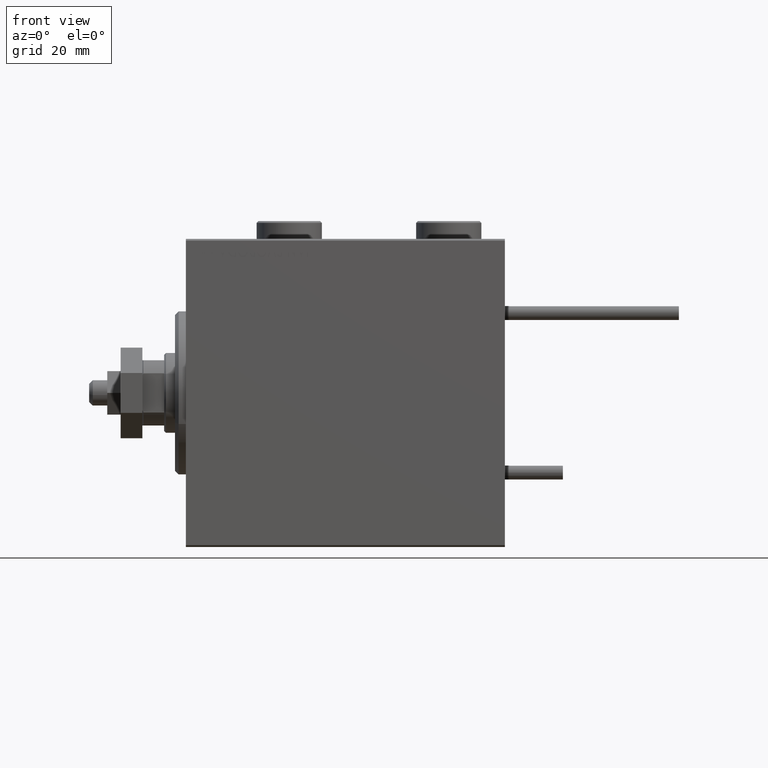
[diagram: clean part render]
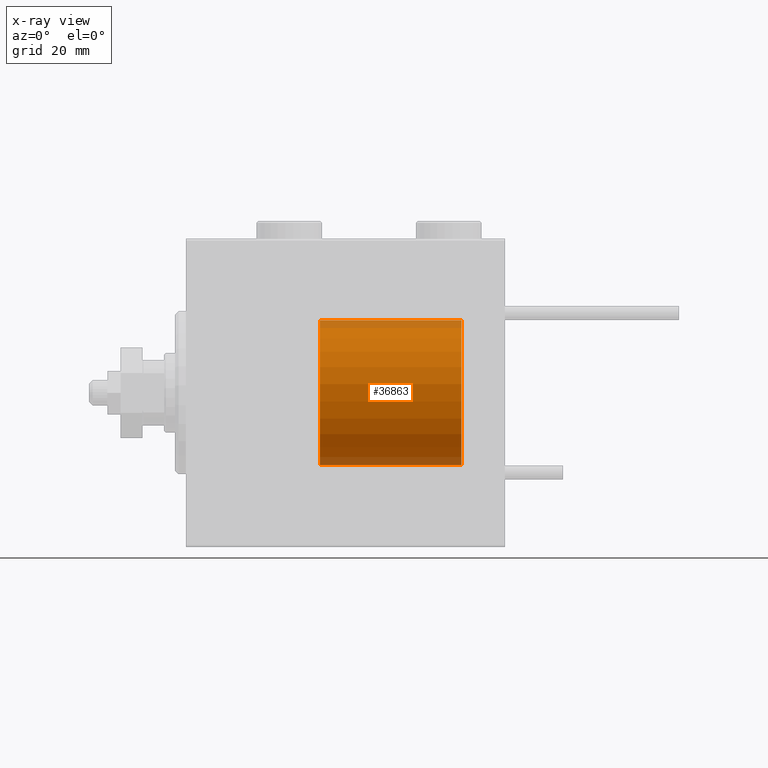
[diagram: x-ray — body ghosted, one internal face saturated and labeled with its STEP entity id]
A machine part, front view, then the same camera in x-ray: the body is ghosted and one INTERNAL B-rep face — a face not visible from any outside direction — is saturated and labeled: STEP entity #36863.
In plain terms, the highlighted cylindrical surface (partial cylindrical patch) has radius 20 mm, axis along (1, -0, -0).
Its self-contained STEP definition (entity closure, byte-faithful):
#14 = VERTEX_POINT ( 'NONE', #20806 ) ;
#439 = ORIENTED_EDGE ( 'NONE', *, *, #13097, .T. ) ;
#2779 = EDGE_CURVE ( 'NONE', #11774, #14, #8825, .T. ) ;
#4287 = VERTEX_POINT ( 'NONE', #35280 ) ;
#5956 = CIRCLE ( 'NONE', #35886, 20.00000000000000000 ) ;
#8825 = LINE ( 'NONE', #24671, #37941 ) ;
#9448 = DIRECTION ( 'NONE',  ( -1.000000000000000000, 0.000000000000000000, 0.000000000000000000 ) ) ;
#11774 = VERTEX_POINT ( 'NONE', #20909 ) ;
#12061 = CARTESIAN_POINT ( 'NONE',  ( 0.000000000000000000, 0.000000000000000000, 39.00000000000000000 ) ) ;
#13097 = EDGE_CURVE ( 'NONE', #42882, #14, #26489, .T. ) ;
#18336 = ORIENTED_EDGE ( 'NONE', *, *, #19271, .F. ) ;
#18864 = DIRECTION ( 'NONE',  ( -0.000000000000000000, -0.000000000000000000, -1.000000000000000000 ) ) ;
#19271 = EDGE_CURVE ( 'NONE', #4287, #11774, #5956, .T. ) ;
#20806 = CARTESIAN_POINT ( 'NONE',  ( 20.00000000000000000, 2.449293598294706513E-15, 0.000000000000000000 ) ) ;
#20909 = CARTESIAN_POINT ( 'NONE',  ( 20.00000000000000000, 2.449293598294706513E-15, 39.00000000000000000 ) ) ;
#20980 = VECTOR ( 'NONE', #18864, 1000.000000000000000 ) ;
#21001 = EDGE_CURVE ( 'NONE', #4287, #42882, #47285, .T. ) ;
#22179 = ORIENTED_EDGE ( 'NONE', *, *, #2779, .F. ) ;
#24671 = CARTESIAN_POINT ( 'NONE',  ( 20.00000000000000000, 2.449293598294706513E-15, 39.00000000000000000 ) ) ;
#26489 = CIRCLE ( 'NONE', #49857, 20.00000000000000000 ) ;
#26982 = DIRECTION ( 'NONE',  ( 0.000000000000000000, 0.000000000000000000, 1.000000000000000000 ) ) ;
#27232 = DIRECTION ( 'NONE',  ( 1.000000000000000000, 0.000000000000000000, 0.000000000000000000 ) ) ;
#27755 = CARTESIAN_POINT ( 'NONE',  ( -20.00000000000000000, 0.000000000000000000, 0.000000000000000000 ) ) ;
#31797 = AXIS2_PLACEMENT_3D ( 'NONE', #12061, #45405, #9448 ) ;
#31840 = FACE_OUTER_BOUND ( 'NONE', #49935, .T. ) ;
#31893 = ORIENTED_EDGE ( 'NONE', *, *, #21001, .T. ) ;
#33933 = CARTESIAN_POINT ( 'NONE',  ( 0.000000000000000000, 0.000000000000000000, 0.000000000000000000 ) ) ;
#35005 = CARTESIAN_POINT ( 'NONE',  ( -20.00000000000000000, 0.000000000000000000, 39.00000000000000000 ) ) ;
#35280 = CARTESIAN_POINT ( 'NONE',  ( -20.00000000000000000, 0.000000000000000000, 39.00000000000000000 ) ) ;
#35886 = AXIS2_PLACEMENT_3D ( 'NONE', #43421, #26982, #27232 ) ;
#36403 = DIRECTION ( 'NONE',  ( -0.000000000000000000, -0.000000000000000000, -1.000000000000000000 ) ) ;
#36863 = ADVANCED_FACE ( 'NONE', ( #31840 ), #47784, .T. ) ;
#37941 = VECTOR ( 'NONE', #36403, 1000.000000000000000 ) ;
#41017 = DIRECTION ( 'NONE',  ( 0.000000000000000000, 0.000000000000000000, 1.000000000000000000 ) ) ;
#41525 = DIRECTION ( 'NONE',  ( 1.000000000000000000, 0.000000000000000000, 0.000000000000000000 ) ) ;
#42882 = VERTEX_POINT ( 'NONE', #27755 ) ;
#43421 = CARTESIAN_POINT ( 'NONE',  ( 0.000000000000000000, 0.000000000000000000, 39.00000000000000000 ) ) ;
#45405 = DIRECTION ( 'NONE',  ( -0.000000000000000000, -0.000000000000000000, -1.000000000000000000 ) ) ;
#47285 = LINE ( 'NONE', #35005, #20980 ) ;
#47784 = CYLINDRICAL_SURFACE ( 'NONE', #31797, 20.00000000000000000 ) ;
#49857 = AXIS2_PLACEMENT_3D ( 'NONE', #33933, #41017, #41525 ) ;
#49935 = EDGE_LOOP ( 'NONE', ( #22179, #18336, #31893, #439 ) ) ;